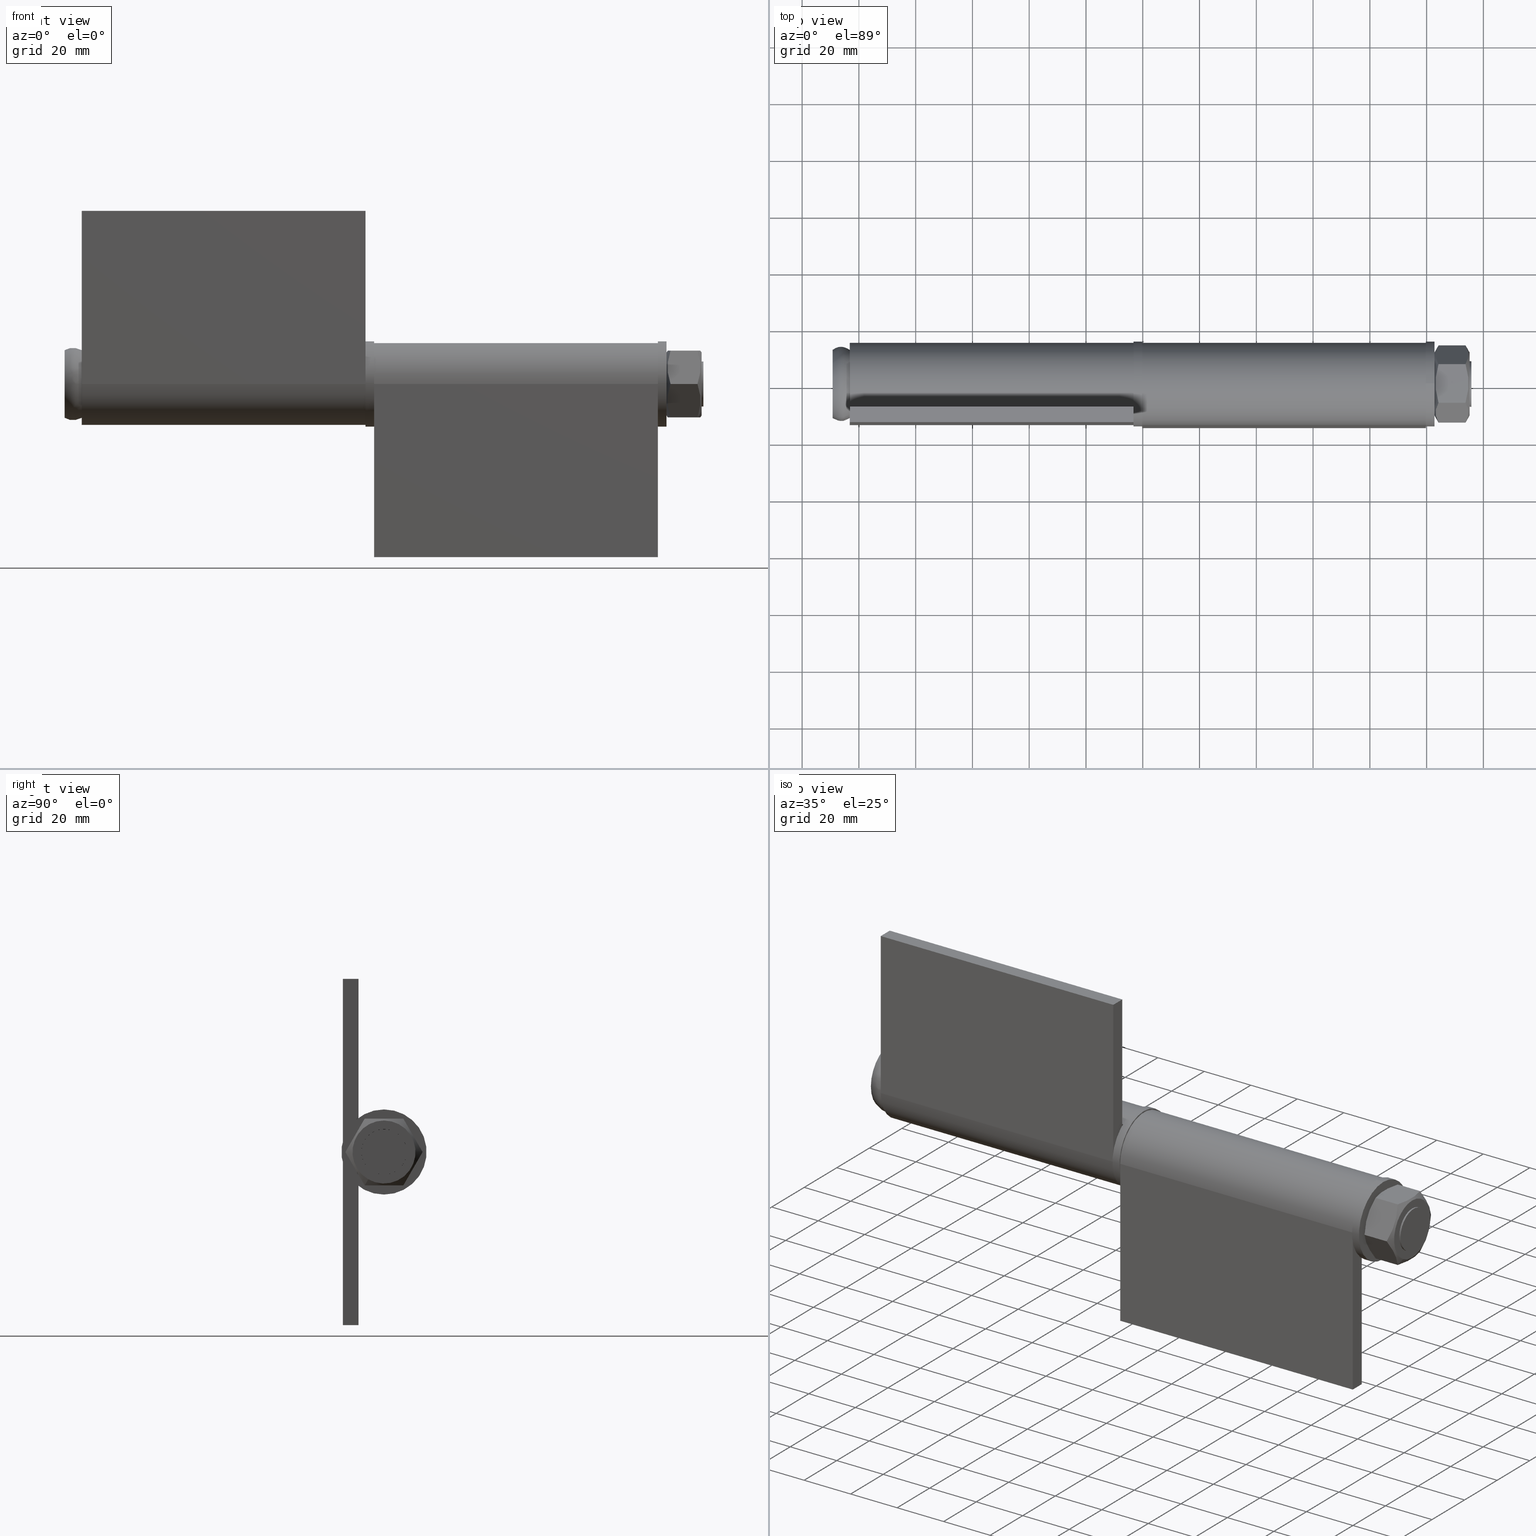
[diagram: canonical four-view strip — front | top / right | iso, engineering-drawing reading convention]
A machine part, canonical four-view strip (front | top / right | iso — engineering-drawing reading convention). The complete STEP part file that produces these views, byte-faithful:
ISO-10303-21;
HEADER;
/* Generated by software containing ST-Developer
 * from STEP Tools, Inc. (www.steptools.com) 
 */

FILE_DESCRIPTION(
/* description */ (''),
/* implementation_level */ '2;1');

FILE_NAME(
/* name */ '\\\\SYNOLOGYNAS\\web\\db2\\HBTN8-B-1\\\X2\B3C4BA74\X0\\\DR
_HBTN8-B-1.stp',
/* time_stamp */ '2023-05-02T17:20:01+09:00',
/* author */ ('user'),
/* organization */ (''),
/* preprocessor_version */ 'ST-DEVELOPER v15.6',
/* originating_system */ 'Autodesk Inventor 2015',
/* authorisation */ '');

FILE_SCHEMA (('AUTOMOTIVE_DESIGN { 1 0 10303 214 3 1 1 }'));
ENDSEC;

DATA;
#10=MECHANICAL_DESIGN_GEOMETRIC_PRESENTATION_REPRESENTATION('',(#97,#98,
#99,#100),#858);
#11=ITEM_DEFINED_TRANSFORMATION($,$,#441,#489);
#12=ITEM_DEFINED_TRANSFORMATION($,$,#450,#490);
#13=ITEM_DEFINED_TRANSFORMATION($,$,#463,#491);
#14=ITEM_DEFINED_TRANSFORMATION($,$,#479,#492);
#15=ITEM_DEFINED_TRANSFORMATION($,$,#450,#493);
#16=ITEM_DEFINED_TRANSFORMATION($,$,#479,#494);
#17=(
REPRESENTATION_RELATIONSHIP($,$,#881,#885)
REPRESENTATION_RELATIONSHIP_WITH_TRANSFORMATION(#11)
SHAPE_REPRESENTATION_RELATIONSHIP()
);
#18=(
REPRESENTATION_RELATIONSHIP($,$,#882,#885)
REPRESENTATION_RELATIONSHIP_WITH_TRANSFORMATION(#12)
SHAPE_REPRESENTATION_RELATIONSHIP()
);
#19=(
REPRESENTATION_RELATIONSHIP($,$,#883,#885)
REPRESENTATION_RELATIONSHIP_WITH_TRANSFORMATION(#13)
SHAPE_REPRESENTATION_RELATIONSHIP()
);
#20=(
REPRESENTATION_RELATIONSHIP($,$,#884,#885)
REPRESENTATION_RELATIONSHIP_WITH_TRANSFORMATION(#14)
SHAPE_REPRESENTATION_RELATIONSHIP()
);
#21=(
REPRESENTATION_RELATIONSHIP($,$,#882,#885)
REPRESENTATION_RELATIONSHIP_WITH_TRANSFORMATION(#15)
SHAPE_REPRESENTATION_RELATIONSHIP()
);
#22=(
REPRESENTATION_RELATIONSHIP($,$,#884,#885)
REPRESENTATION_RELATIONSHIP_WITH_TRANSFORMATION(#16)
SHAPE_REPRESENTATION_RELATIONSHIP()
);
#23=CONTEXT_DEPENDENT_SHAPE_REPRESENTATION(#17,#875);
#24=CONTEXT_DEPENDENT_SHAPE_REPRESENTATION(#18,#876);
#25=CONTEXT_DEPENDENT_SHAPE_REPRESENTATION(#19,#877);
#26=CONTEXT_DEPENDENT_SHAPE_REPRESENTATION(#20,#878);
#27=CONTEXT_DEPENDENT_SHAPE_REPRESENTATION(#21,#879);
#28=CONTEXT_DEPENDENT_SHAPE_REPRESENTATION(#22,#880);
#29=NEXT_ASSEMBLY_USAGE_OCCURRENCE('DR_HBTN8-B-1-P:1',$,$,#891,#887,$);
#30=NEXT_ASSEMBLY_USAGE_OCCURRENCE('DR_HBTN8-B-1:1',$,$,#891,#888,$);
#31=NEXT_ASSEMBLY_USAGE_OCCURRENCE('DR_HBTN8-B-1-N:1',$,$,#891,#889,$);
#32=NEXT_ASSEMBLY_USAGE_OCCURRENCE('DR_HBTN8-B-1-W:1',$,$,#891,#890,$);
#33=NEXT_ASSEMBLY_USAGE_OCCURRENCE('DR_HBTN8-B-1:2',$,$,#891,#888,$);
#34=NEXT_ASSEMBLY_USAGE_OCCURRENCE('DR_HBTN8-B-1-W:2',$,$,#891,#890,$);
#35=CONICAL_SURFACE('',#473,12.35,60.);
#36=CONICAL_SURFACE('',#476,12.35,60.);
#37=(
BOUNDED_CURVE()
B_SPLINE_CURVE(2,(#762,#763,#764),.UNSPECIFIED.,.F.,.F.)
B_SPLINE_CURVE_WITH_KNOTS((3,3),(0.,1.37617771445435),.UNSPECIFIED.)
CURVE()
GEOMETRIC_REPRESENTATION_ITEM()
RATIONAL_B_SPLINE_CURVE((1.,1.15470053837925,1.))
REPRESENTATION_ITEM('')
);
#38=(
BOUNDED_CURVE()
B_SPLINE_CURVE(2,(#768,#769,#770),.UNSPECIFIED.,.F.,.F.)
B_SPLINE_CURVE_WITH_KNOTS((3,3),(0.,1.37617771445435),.UNSPECIFIED.)
CURVE()
GEOMETRIC_REPRESENTATION_ITEM()
RATIONAL_B_SPLINE_CURVE((1.,1.15470053837925,1.))
REPRESENTATION_ITEM('')
);
#39=(
BOUNDED_CURVE()
B_SPLINE_CURVE(2,(#774,#775,#776),.UNSPECIFIED.,.F.,.F.)
B_SPLINE_CURVE_WITH_KNOTS((3,3),(0.,1.37617771445435),.UNSPECIFIED.)
CURVE()
GEOMETRIC_REPRESENTATION_ITEM()
RATIONAL_B_SPLINE_CURVE((1.,1.15470053837925,1.))
REPRESENTATION_ITEM('')
);
#40=(
BOUNDED_CURVE()
B_SPLINE_CURVE(2,(#779,#780,#781),.UNSPECIFIED.,.F.,.F.)
B_SPLINE_CURVE_WITH_KNOTS((3,3),(0.,1.37617771445435),.UNSPECIFIED.)
CURVE()
GEOMETRIC_REPRESENTATION_ITEM()
RATIONAL_B_SPLINE_CURVE((1.,1.15470053837925,1.))
REPRESENTATION_ITEM('')
);
#41=(
BOUNDED_CURVE()
B_SPLINE_CURVE(2,(#784,#785,#786),.UNSPECIFIED.,.F.,.F.)
B_SPLINE_CURVE_WITH_KNOTS((3,3),(0.,1.37617771445435),.UNSPECIFIED.)
CURVE()
GEOMETRIC_REPRESENTATION_ITEM()
RATIONAL_B_SPLINE_CURVE((1.,1.15470053837925,1.))
REPRESENTATION_ITEM('')
);
#42=(
BOUNDED_CURVE()
B_SPLINE_CURVE(2,(#789,#790,#791),.UNSPECIFIED.,.F.,.F.)
B_SPLINE_CURVE_WITH_KNOTS((3,3),(0.,1.37617771445435),.UNSPECIFIED.)
CURVE()
GEOMETRIC_REPRESENTATION_ITEM()
RATIONAL_B_SPLINE_CURVE((1.,1.15470053837925,1.))
REPRESENTATION_ITEM('')
);
#43=(
BOUNDED_CURVE()
B_SPLINE_CURVE(2,(#794,#795,#796),.UNSPECIFIED.,.F.,.F.)
B_SPLINE_CURVE_WITH_KNOTS((3,3),(0.,1.37617771445435),.UNSPECIFIED.)
CURVE()
GEOMETRIC_REPRESENTATION_ITEM()
RATIONAL_B_SPLINE_CURVE((1.,1.15470053837925,1.))
REPRESENTATION_ITEM('')
);
#44=(
BOUNDED_CURVE()
B_SPLINE_CURVE(2,(#799,#800,#801),.UNSPECIFIED.,.F.,.F.)
B_SPLINE_CURVE_WITH_KNOTS((3,3),(0.,1.37617771445435),.UNSPECIFIED.)
CURVE()
GEOMETRIC_REPRESENTATION_ITEM()
RATIONAL_B_SPLINE_CURVE((1.,1.15470053837925,1.))
REPRESENTATION_ITEM('')
);
#45=(
BOUNDED_CURVE()
B_SPLINE_CURVE(2,(#804,#805,#806),.UNSPECIFIED.,.F.,.F.)
B_SPLINE_CURVE_WITH_KNOTS((3,3),(0.,1.37617771445435),.UNSPECIFIED.)
CURVE()
GEOMETRIC_REPRESENTATION_ITEM()
RATIONAL_B_SPLINE_CURVE((1.,1.15470053837925,1.))
REPRESENTATION_ITEM('')
);
#46=(
BOUNDED_CURVE()
B_SPLINE_CURVE(2,(#809,#810,#811),.UNSPECIFIED.,.F.,.F.)
B_SPLINE_CURVE_WITH_KNOTS((3,3),(0.,1.37617771445435),.UNSPECIFIED.)
CURVE()
GEOMETRIC_REPRESENTATION_ITEM()
RATIONAL_B_SPLINE_CURVE((1.,1.15470053837925,1.))
REPRESENTATION_ITEM('')
);
#47=(
BOUNDED_CURVE()
B_SPLINE_CURVE(2,(#813,#814,#815),.UNSPECIFIED.,.F.,.F.)
B_SPLINE_CURVE_WITH_KNOTS((3,3),(0.,1.37617771445435),.UNSPECIFIED.)
CURVE()
GEOMETRIC_REPRESENTATION_ITEM()
RATIONAL_B_SPLINE_CURVE((1.,1.15470053837925,1.))
REPRESENTATION_ITEM('')
);
#48=(
BOUNDED_CURVE()
B_SPLINE_CURVE(2,(#816,#817,#818),.UNSPECIFIED.,.F.,.F.)
B_SPLINE_CURVE_WITH_KNOTS((3,3),(0.,1.37617771445435),.UNSPECIFIED.)
CURVE()
GEOMETRIC_REPRESENTATION_ITEM()
RATIONAL_B_SPLINE_CURVE((1.,1.15470053837925,1.))
REPRESENTATION_ITEM('')
);
#49=LINE('',#718,#69);
#50=LINE('',#720,#70);
#51=LINE('',#722,#71);
#52=LINE('',#723,#72);
#53=LINE('',#726,#73);
#54=LINE('',#728,#74);
#55=LINE('',#729,#75);
#56=LINE('',#732,#76);
#57=LINE('',#734,#77);
#58=LINE('',#735,#78);
#59=LINE('',#740,#79);
#60=LINE('',#744,#80);
#61=LINE('',#746,#81);
#62=LINE('',#747,#82);
#63=LINE('',#766,#83);
#64=LINE('',#771,#84);
#65=LINE('',#778,#85);
#66=LINE('',#788,#86);
#67=LINE('',#798,#87);
#68=LINE('',#808,#88);
#69=VECTOR('',#517,61.);
#70=VECTOR('',#518,100.);
#71=VECTOR('',#519,61.);
#72=VECTOR('',#520,100.);
#73=VECTOR('',#523,5.5);
#74=VECTOR('',#524,100.);
#75=VECTOR('',#525,5.5);
#76=VECTOR('',#528,61.);
#77=VECTOR('',#529,100.);
#78=VECTOR('',#530,61.);
#79=VECTOR('',#535,100.);
#80=VECTOR('',#540,5.50000000000001);
#81=VECTOR('',#541,100.);
#82=VECTOR('',#542,5.50000000000001);
#83=VECTOR('',#563,9.51324865405187);
#84=VECTOR('',#564,9.51324865405187);
#85=VECTOR('',#567,9.51324865405187);
#86=VECTOR('',#570,9.51324865405187);
#87=VECTOR('',#573,9.51324865405187);
#88=VECTOR('',#576,9.51324865405187);
#89=SHAPE_REPRESENTATION_RELATIONSHIP('SRR','None',#881,#93);
#90=SHAPE_REPRESENTATION_RELATIONSHIP('SRR','None',#882,#94);
#91=SHAPE_REPRESENTATION_RELATIONSHIP('SRR','None',#883,#95);
#92=SHAPE_REPRESENTATION_RELATIONSHIP('SRR','None',#884,#96);
#93=ADVANCED_BREP_SHAPE_REPRESENTATION($,(#101),#853);
#94=ADVANCED_BREP_SHAPE_REPRESENTATION($,(#102),#854);
#95=ADVANCED_BREP_SHAPE_REPRESENTATION($,(#103),#855);
#96=ADVANCED_BREP_SHAPE_REPRESENTATION($,(#104),#856);
#97=STYLED_ITEM('',(#910),#101);
#98=STYLED_ITEM('',(#911),#102);
#99=STYLED_ITEM('',(#912),#103);
#100=STYLED_ITEM('',(#913),#104);
#101=MANIFOLD_SOLID_BREP('\X2\C194B9ACB4DC\X0\1',#437);
#102=MANIFOLD_SOLID_BREP('\X2\C194B9ACB4DC\X0\1',#438);
#103=MANIFOLD_SOLID_BREP('\X2\C194B9ACB4DC\X0\1',#439);
#104=MANIFOLD_SOLID_BREP('\X2\C194B9ACB4DC\X0\1',#440);
#105=CYLINDRICAL_SURFACE('',#447,8.00000000000005);
#106=CYLINDRICAL_SURFACE('',#454,8.99999999999999);
#107=CYLINDRICAL_SURFACE('',#458,14.5);
#108=CYLINDRICAL_SURFACE('',#464,8.);
#109=CYLINDRICAL_SURFACE('',#480,8.5);
#110=CYLINDRICAL_SURFACE('',#483,15.);
#111=B_SPLINE_CURVE_WITH_KNOTS('',3,(#703,#704,#705,#706,#707,#708),
 .UNSPECIFIED.,.F.,.F.,(4,2,4),(0.,0.351628704774406,1.),.UNSPECIFIED.);
#112=B_SPLINE_SURFACE_WITH_KNOTS('',3,3,((#629,#630,#631,#632),(#633,#634,
#635,#636),(#637,#638,#639,#640),(#641,#642,#643,#644),(#645,#646,#647,
#648),(#649,#650,#651,#652),(#653,#654,#655,#656),(#657,#658,#659,#660),
(#661,#662,#663,#664),(#665,#666,#667,#668),(#669,#670,#671,#672),(#673,
#674,#675,#676),(#677,#678,#679,#680),(#681,#682,#683,#684),(#685,#686,
#687,#688),(#689,#690,#691,#692),(#693,#694,#695,#696),(#697,#698,#699,
#700)),.UNSPECIFIED.,.T.,.F.,.F.,(4,1,1,1,1,1,1,1,1,1,1,1,1,1,1,4),(4,4),
(-3.27901317847429E-31,0.0714285714285714,0.142857142857143,0.214285714285714,
0.285714285714286,0.357142857142857,0.428571428571429,0.523809523809524,
0.547619047619048,0.571428571428571,0.666666666666667,0.714285714285714,
0.785714285714286,0.857142857142857,0.928571428571429,1.),(0.,1.),
 .UNSPECIFIED.);
#113=FACE_BOUND('',#153,.T.);
#114=FACE_BOUND('',#157,.T.);
#115=FACE_BOUND('',#168,.T.);
#116=FACE_BOUND('',#176,.T.);
#117=FACE_BOUND('',#178,.T.);
#118=FACE_BOUND('',#180,.T.);
#119=FACE_BOUND('',#182,.T.);
#120=FACE_BOUND('',#184,.T.);
#121=FACE_BOUND('',#186,.T.);
#122=FACE_BOUND('',#188,.T.);
#123=FACE_BOUND('',#190,.T.);
#124=FACE_OUTER_BOUND('',#152,.T.);
#125=FACE_OUTER_BOUND('',#154,.T.);
#126=FACE_OUTER_BOUND('',#155,.T.);
#127=FACE_OUTER_BOUND('',#156,.T.);
#128=FACE_OUTER_BOUND('',#158,.T.);
#129=FACE_OUTER_BOUND('',#159,.T.);
#130=FACE_OUTER_BOUND('',#160,.T.);
#131=FACE_OUTER_BOUND('',#161,.T.);
#132=FACE_OUTER_BOUND('',#162,.T.);
#133=FACE_OUTER_BOUND('',#163,.T.);
#134=FACE_OUTER_BOUND('',#164,.T.);
#135=FACE_OUTER_BOUND('',#165,.T.);
#136=FACE_OUTER_BOUND('',#166,.T.);
#137=FACE_OUTER_BOUND('',#167,.T.);
#138=FACE_OUTER_BOUND('',#169,.T.);
#139=FACE_OUTER_BOUND('',#170,.T.);
#140=FACE_OUTER_BOUND('',#171,.T.);
#141=FACE_OUTER_BOUND('',#172,.T.);
#142=FACE_OUTER_BOUND('',#173,.T.);
#143=FACE_OUTER_BOUND('',#174,.T.);
#144=FACE_OUTER_BOUND('',#175,.T.);
#145=FACE_OUTER_BOUND('',#177,.T.);
#146=FACE_OUTER_BOUND('',#179,.T.);
#147=FACE_OUTER_BOUND('',#181,.T.);
#148=FACE_OUTER_BOUND('',#183,.T.);
#149=FACE_OUTER_BOUND('',#185,.T.);
#150=FACE_OUTER_BOUND('',#187,.T.);
#151=FACE_OUTER_BOUND('',#189,.T.);
#152=EDGE_LOOP('',(#292));
#153=EDGE_LOOP('',(#293));
#154=EDGE_LOOP('',(#294,#295,#296,#297));
#155=EDGE_LOOP('',(#298));
#156=EDGE_LOOP('',(#299));
#157=EDGE_LOOP('',(#300));
#158=EDGE_LOOP('',(#301));
#159=EDGE_LOOP('',(#302,#303,#304,#305));
#160=EDGE_LOOP('',(#306,#307,#308,#309));
#161=EDGE_LOOP('',(#310,#311,#312,#313));
#162=EDGE_LOOP('',(#314,#315,#316,#317));
#163=EDGE_LOOP('',(#318,#319,#320,#321));
#164=EDGE_LOOP('',(#322,#323,#324,#325));
#165=EDGE_LOOP('',(#326,#327,#328,#329,#330,#331));
#166=EDGE_LOOP('',(#332,#333,#334,#335,#336,#337));
#167=EDGE_LOOP('',(#338));
#168=EDGE_LOOP('',(#339));
#169=EDGE_LOOP('',(#340,#341,#342,#343));
#170=EDGE_LOOP('',(#344,#345,#346,#347));
#171=EDGE_LOOP('',(#348,#349,#350,#351));
#172=EDGE_LOOP('',(#352,#353,#354,#355));
#173=EDGE_LOOP('',(#356,#357,#358,#359));
#174=EDGE_LOOP('',(#360,#361,#362,#363));
#175=EDGE_LOOP('',(#364,#365,#366,#367,#368,#369));
#176=EDGE_LOOP('',(#370));
#177=EDGE_LOOP('',(#371));
#178=EDGE_LOOP('',(#372));
#179=EDGE_LOOP('',(#373,#374,#375,#376,#377,#378));
#180=EDGE_LOOP('',(#379));
#181=EDGE_LOOP('',(#380));
#182=EDGE_LOOP('',(#381));
#183=EDGE_LOOP('',(#382));
#184=EDGE_LOOP('',(#383));
#185=EDGE_LOOP('',(#384));
#186=EDGE_LOOP('',(#385));
#187=EDGE_LOOP('',(#386));
#188=EDGE_LOOP('',(#387));
#189=EDGE_LOOP('',(#388));
#190=EDGE_LOOP('',(#389));
#191=CIRCLE('',#443,12.);
#192=CIRCLE('',#444,8.00000000000005);
#193=CIRCLE('',#445,12.);
#194=CIRCLE('',#448,8.);
#195=CIRCLE('',#455,8.99999999999999);
#196=CIRCLE('',#456,8.99999999999999);
#197=CIRCLE('',#459,14.5);
#198=CIRCLE('',#460,14.5);
#199=CIRCLE('',#465,8.);
#200=CIRCLE('',#466,8.);
#201=CIRCLE('',#474,11.1);
#202=CIRCLE('',#477,11.1);
#203=CIRCLE('',#481,8.5);
#204=CIRCLE('',#482,8.5);
#205=CIRCLE('',#484,15.);
#206=CIRCLE('',#485,15.);
#207=VERTEX_POINT('',#625);
#208=VERTEX_POINT('',#627);
#209=VERTEX_POINT('',#701);
#210=VERTEX_POINT('',#711);
#211=VERTEX_POINT('',#716);
#212=VERTEX_POINT('',#717);
#213=VERTEX_POINT('',#719);
#214=VERTEX_POINT('',#721);
#215=VERTEX_POINT('',#725);
#216=VERTEX_POINT('',#727);
#217=VERTEX_POINT('',#731);
#218=VERTEX_POINT('',#733);
#219=VERTEX_POINT('',#737);
#220=VERTEX_POINT('',#739);
#221=VERTEX_POINT('',#743);
#222=VERTEX_POINT('',#745);
#223=VERTEX_POINT('',#755);
#224=VERTEX_POINT('',#757);
#225=VERTEX_POINT('',#760);
#226=VERTEX_POINT('',#761);
#227=VERTEX_POINT('',#765);
#228=VERTEX_POINT('',#767);
#229=VERTEX_POINT('',#773);
#230=VERTEX_POINT('',#777);
#231=VERTEX_POINT('',#783);
#232=VERTEX_POINT('',#787);
#233=VERTEX_POINT('',#793);
#234=VERTEX_POINT('',#797);
#235=VERTEX_POINT('',#803);
#236=VERTEX_POINT('',#807);
#237=VERTEX_POINT('',#820);
#238=VERTEX_POINT('',#824);
#239=VERTEX_POINT('',#829);
#240=VERTEX_POINT('',#831);
#241=VERTEX_POINT('',#834);
#242=VERTEX_POINT('',#836);
#243=EDGE_CURVE('',#207,#207,#191,.T.);
#244=EDGE_CURVE('',#208,#208,#192,.T.);
#245=EDGE_CURVE('',#209,#209,#193,.T.);
#246=EDGE_CURVE('',#209,#207,#111,.T.);
#247=EDGE_CURVE('',#210,#210,#194,.T.);
#248=EDGE_CURVE('',#211,#212,#49,.T.);
#249=EDGE_CURVE('',#213,#212,#50,.T.);
#250=EDGE_CURVE('',#213,#214,#51,.T.);
#251=EDGE_CURVE('',#214,#211,#52,.T.);
#252=EDGE_CURVE('',#212,#215,#53,.T.);
#253=EDGE_CURVE('',#216,#215,#54,.T.);
#254=EDGE_CURVE('',#216,#213,#55,.T.);
#255=EDGE_CURVE('',#215,#217,#56,.T.);
#256=EDGE_CURVE('',#218,#217,#57,.T.);
#257=EDGE_CURVE('',#218,#216,#58,.T.);
#258=EDGE_CURVE('',#217,#219,#195,.T.);
#259=EDGE_CURVE('',#220,#219,#59,.T.);
#260=EDGE_CURVE('',#220,#218,#196,.T.);
#261=EDGE_CURVE('',#219,#221,#60,.T.);
#262=EDGE_CURVE('',#222,#221,#61,.T.);
#263=EDGE_CURVE('',#222,#220,#62,.T.);
#264=EDGE_CURVE('',#221,#211,#197,.T.);
#265=EDGE_CURVE('',#214,#222,#198,.T.);
#266=EDGE_CURVE('',#223,#223,#199,.T.);
#267=EDGE_CURVE('',#224,#224,#200,.T.);
#268=EDGE_CURVE('',#225,#226,#37,.T.);
#269=EDGE_CURVE('',#226,#227,#63,.T.);
#270=EDGE_CURVE('',#227,#228,#38,.T.);
#271=EDGE_CURVE('',#225,#228,#64,.T.);
#272=EDGE_CURVE('',#226,#229,#39,.T.);
#273=EDGE_CURVE('',#230,#229,#65,.T.);
#274=EDGE_CURVE('',#230,#227,#40,.T.);
#275=EDGE_CURVE('',#229,#231,#41,.T.);
#276=EDGE_CURVE('',#231,#232,#66,.T.);
#277=EDGE_CURVE('',#232,#230,#42,.T.);
#278=EDGE_CURVE('',#231,#233,#43,.T.);
#279=EDGE_CURVE('',#233,#234,#67,.T.);
#280=EDGE_CURVE('',#234,#232,#44,.T.);
#281=EDGE_CURVE('',#233,#235,#45,.T.);
#282=EDGE_CURVE('',#235,#236,#68,.T.);
#283=EDGE_CURVE('',#236,#234,#46,.T.);
#284=EDGE_CURVE('',#235,#225,#47,.T.);
#285=EDGE_CURVE('',#228,#236,#48,.T.);
#286=EDGE_CURVE('',#237,#237,#201,.T.);
#287=EDGE_CURVE('',#238,#238,#202,.T.);
#288=EDGE_CURVE('',#239,#239,#203,.T.);
#289=EDGE_CURVE('',#240,#240,#204,.T.);
#290=EDGE_CURVE('',#241,#241,#205,.T.);
#291=EDGE_CURVE('',#242,#242,#206,.T.);
#292=ORIENTED_EDGE('',*,*,#243,.T.);
#293=ORIENTED_EDGE('',*,*,#244,.F.);
#294=ORIENTED_EDGE('',*,*,#245,.T.);
#295=ORIENTED_EDGE('',*,*,#246,.T.);
#296=ORIENTED_EDGE('',*,*,#243,.F.);
#297=ORIENTED_EDGE('',*,*,#246,.F.);
#298=ORIENTED_EDGE('',*,*,#245,.F.);
#299=ORIENTED_EDGE('',*,*,#244,.T.);
#300=ORIENTED_EDGE('',*,*,#247,.F.);
#301=ORIENTED_EDGE('',*,*,#247,.T.);
#302=ORIENTED_EDGE('',*,*,#248,.T.);
#303=ORIENTED_EDGE('',*,*,#249,.F.);
#304=ORIENTED_EDGE('',*,*,#250,.T.);
#305=ORIENTED_EDGE('',*,*,#251,.T.);
#306=ORIENTED_EDGE('',*,*,#252,.T.);
#307=ORIENTED_EDGE('',*,*,#253,.F.);
#308=ORIENTED_EDGE('',*,*,#254,.T.);
#309=ORIENTED_EDGE('',*,*,#249,.T.);
#310=ORIENTED_EDGE('',*,*,#255,.T.);
#311=ORIENTED_EDGE('',*,*,#256,.F.);
#312=ORIENTED_EDGE('',*,*,#257,.T.);
#313=ORIENTED_EDGE('',*,*,#253,.T.);
#314=ORIENTED_EDGE('',*,*,#258,.T.);
#315=ORIENTED_EDGE('',*,*,#259,.F.);
#316=ORIENTED_EDGE('',*,*,#260,.T.);
#317=ORIENTED_EDGE('',*,*,#256,.T.);
#318=ORIENTED_EDGE('',*,*,#261,.T.);
#319=ORIENTED_EDGE('',*,*,#262,.F.);
#320=ORIENTED_EDGE('',*,*,#263,.T.);
#321=ORIENTED_EDGE('',*,*,#259,.T.);
#322=ORIENTED_EDGE('',*,*,#264,.T.);
#323=ORIENTED_EDGE('',*,*,#251,.F.);
#324=ORIENTED_EDGE('',*,*,#265,.T.);
#325=ORIENTED_EDGE('',*,*,#262,.T.);
#326=ORIENTED_EDGE('',*,*,#265,.F.);
#327=ORIENTED_EDGE('',*,*,#250,.F.);
#328=ORIENTED_EDGE('',*,*,#254,.F.);
#329=ORIENTED_EDGE('',*,*,#257,.F.);
#330=ORIENTED_EDGE('',*,*,#260,.F.);
#331=ORIENTED_EDGE('',*,*,#263,.F.);
#332=ORIENTED_EDGE('',*,*,#248,.F.);
#333=ORIENTED_EDGE('',*,*,#264,.F.);
#334=ORIENTED_EDGE('',*,*,#261,.F.);
#335=ORIENTED_EDGE('',*,*,#258,.F.);
#336=ORIENTED_EDGE('',*,*,#255,.F.);
#337=ORIENTED_EDGE('',*,*,#252,.F.);
#338=ORIENTED_EDGE('',*,*,#266,.F.);
#339=ORIENTED_EDGE('',*,*,#267,.F.);
#340=ORIENTED_EDGE('',*,*,#268,.T.);
#341=ORIENTED_EDGE('',*,*,#269,.T.);
#342=ORIENTED_EDGE('',*,*,#270,.T.);
#343=ORIENTED_EDGE('',*,*,#271,.F.);
#344=ORIENTED_EDGE('',*,*,#272,.T.);
#345=ORIENTED_EDGE('',*,*,#273,.F.);
#346=ORIENTED_EDGE('',*,*,#274,.T.);
#347=ORIENTED_EDGE('',*,*,#269,.F.);
#348=ORIENTED_EDGE('',*,*,#275,.T.);
#349=ORIENTED_EDGE('',*,*,#276,.T.);
#350=ORIENTED_EDGE('',*,*,#277,.T.);
#351=ORIENTED_EDGE('',*,*,#273,.T.);
#352=ORIENTED_EDGE('',*,*,#278,.T.);
#353=ORIENTED_EDGE('',*,*,#279,.T.);
#354=ORIENTED_EDGE('',*,*,#280,.T.);
#355=ORIENTED_EDGE('',*,*,#276,.F.);
#356=ORIENTED_EDGE('',*,*,#281,.T.);
#357=ORIENTED_EDGE('',*,*,#282,.T.);
#358=ORIENTED_EDGE('',*,*,#283,.T.);
#359=ORIENTED_EDGE('',*,*,#279,.F.);
#360=ORIENTED_EDGE('',*,*,#284,.T.);
#361=ORIENTED_EDGE('',*,*,#271,.T.);
#362=ORIENTED_EDGE('',*,*,#285,.T.);
#363=ORIENTED_EDGE('',*,*,#282,.F.);
#364=ORIENTED_EDGE('',*,*,#280,.F.);
#365=ORIENTED_EDGE('',*,*,#283,.F.);
#366=ORIENTED_EDGE('',*,*,#285,.F.);
#367=ORIENTED_EDGE('',*,*,#270,.F.);
#368=ORIENTED_EDGE('',*,*,#274,.F.);
#369=ORIENTED_EDGE('',*,*,#277,.F.);
#370=ORIENTED_EDGE('',*,*,#286,.T.);
#371=ORIENTED_EDGE('',*,*,#286,.F.);
#372=ORIENTED_EDGE('',*,*,#267,.T.);
#373=ORIENTED_EDGE('',*,*,#275,.F.);
#374=ORIENTED_EDGE('',*,*,#272,.F.);
#375=ORIENTED_EDGE('',*,*,#268,.F.);
#376=ORIENTED_EDGE('',*,*,#284,.F.);
#377=ORIENTED_EDGE('',*,*,#281,.F.);
#378=ORIENTED_EDGE('',*,*,#278,.F.);
#379=ORIENTED_EDGE('',*,*,#287,.T.);
#380=ORIENTED_EDGE('',*,*,#287,.F.);
#381=ORIENTED_EDGE('',*,*,#266,.T.);
#382=ORIENTED_EDGE('',*,*,#288,.F.);
#383=ORIENTED_EDGE('',*,*,#289,.F.);
#384=ORIENTED_EDGE('',*,*,#290,.T.);
#385=ORIENTED_EDGE('',*,*,#291,.F.);
#386=ORIENTED_EDGE('',*,*,#290,.F.);
#387=ORIENTED_EDGE('',*,*,#288,.T.);
#388=ORIENTED_EDGE('',*,*,#291,.T.);
#389=ORIENTED_EDGE('',*,*,#289,.T.);
#390=PLANE('',#442);
#391=PLANE('',#446);
#392=PLANE('',#449);
#393=PLANE('',#451);
#394=PLANE('',#452);
#395=PLANE('',#453);
#396=PLANE('',#457);
#397=PLANE('',#461);
#398=PLANE('',#462);
#399=PLANE('',#467);
#400=PLANE('',#468);
#401=PLANE('',#469);
#402=PLANE('',#470);
#403=PLANE('',#471);
#404=PLANE('',#472);
#405=PLANE('',#475);
#406=PLANE('',#478);
#407=PLANE('',#486);
#408=PLANE('',#487);
#409=ADVANCED_FACE('',(#124,#113),#390,.T.);
#410=ADVANCED_FACE('',(#125),#112,.T.);
#411=ADVANCED_FACE('',(#126),#391,.T.);
#412=ADVANCED_FACE('',(#127,#114),#105,.T.);
#413=ADVANCED_FACE('',(#128),#392,.T.);
#414=ADVANCED_FACE('',(#129),#393,.T.);
#415=ADVANCED_FACE('',(#130),#394,.T.);
#416=ADVANCED_FACE('',(#131),#395,.T.);
#417=ADVANCED_FACE('',(#132),#106,.F.);
#418=ADVANCED_FACE('',(#133),#396,.T.);
#419=ADVANCED_FACE('',(#134),#107,.T.);
#420=ADVANCED_FACE('',(#135),#397,.F.);
#421=ADVANCED_FACE('',(#136),#398,.T.);
#422=ADVANCED_FACE('',(#137,#115),#108,.F.);
#423=ADVANCED_FACE('',(#138),#399,.T.);
#424=ADVANCED_FACE('',(#139),#400,.T.);
#425=ADVANCED_FACE('',(#140),#401,.T.);
#426=ADVANCED_FACE('',(#141),#402,.T.);
#427=ADVANCED_FACE('',(#142),#403,.T.);
#428=ADVANCED_FACE('',(#143),#404,.T.);
#429=ADVANCED_FACE('',(#144,#116),#35,.T.);
#430=ADVANCED_FACE('',(#145,#117),#405,.F.);
#431=ADVANCED_FACE('',(#146,#118),#36,.T.);
#432=ADVANCED_FACE('',(#147,#119),#406,.T.);
#433=ADVANCED_FACE('',(#148,#120),#109,.F.);
#434=ADVANCED_FACE('',(#149,#121),#110,.T.);
#435=ADVANCED_FACE('',(#150,#122),#407,.F.);
#436=ADVANCED_FACE('',(#151,#123),#408,.T.);
#437=CLOSED_SHELL('',(#409,#410,#411,#412,#413));
#438=CLOSED_SHELL('',(#414,#415,#416,#417,#418,#419,#420,#421));
#439=CLOSED_SHELL('',(#422,#423,#424,#425,#426,#427,#428,#429,#430,#431,
#432));
#440=CLOSED_SHELL('',(#433,#434,#435,#436));
#441=AXIS2_PLACEMENT_3D('placement',#623,#495,#496);
#442=AXIS2_PLACEMENT_3D('',#624,#497,#498);
#443=AXIS2_PLACEMENT_3D('',#626,#499,#500);
#444=AXIS2_PLACEMENT_3D('',#628,#501,#502);
#445=AXIS2_PLACEMENT_3D('',#702,#503,#504);
#446=AXIS2_PLACEMENT_3D('',#709,#505,#506);
#447=AXIS2_PLACEMENT_3D('',#710,#507,#508);
#448=AXIS2_PLACEMENT_3D('',#712,#509,#510);
#449=AXIS2_PLACEMENT_3D('',#713,#511,#512);
#450=AXIS2_PLACEMENT_3D('placement',#714,#513,#514);
#451=AXIS2_PLACEMENT_3D('',#715,#515,#516);
#452=AXIS2_PLACEMENT_3D('',#724,#521,#522);
#453=AXIS2_PLACEMENT_3D('',#730,#526,#527);
#454=AXIS2_PLACEMENT_3D('',#736,#531,#532);
#455=AXIS2_PLACEMENT_3D('',#738,#533,#534);
#456=AXIS2_PLACEMENT_3D('',#741,#536,#537);
#457=AXIS2_PLACEMENT_3D('',#742,#538,#539);
#458=AXIS2_PLACEMENT_3D('',#748,#543,#544);
#459=AXIS2_PLACEMENT_3D('',#749,#545,#546);
#460=AXIS2_PLACEMENT_3D('',#750,#547,#548);
#461=AXIS2_PLACEMENT_3D('',#751,#549,#550);
#462=AXIS2_PLACEMENT_3D('',#752,#551,#552);
#463=AXIS2_PLACEMENT_3D('placement',#753,#553,#554);
#464=AXIS2_PLACEMENT_3D('',#754,#555,#556);
#465=AXIS2_PLACEMENT_3D('',#756,#557,#558);
#466=AXIS2_PLACEMENT_3D('',#758,#559,#560);
#467=AXIS2_PLACEMENT_3D('',#759,#561,#562);
#468=AXIS2_PLACEMENT_3D('',#772,#565,#566);
#469=AXIS2_PLACEMENT_3D('',#782,#568,#569);
#470=AXIS2_PLACEMENT_3D('',#792,#571,#572);
#471=AXIS2_PLACEMENT_3D('',#802,#574,#575);
#472=AXIS2_PLACEMENT_3D('',#812,#577,#578);
#473=AXIS2_PLACEMENT_3D('',#819,#579,#580);
#474=AXIS2_PLACEMENT_3D('',#821,#581,#582);
#475=AXIS2_PLACEMENT_3D('',#822,#583,#584);
#476=AXIS2_PLACEMENT_3D('',#823,#585,#586);
#477=AXIS2_PLACEMENT_3D('',#825,#587,#588);
#478=AXIS2_PLACEMENT_3D('',#826,#589,#590);
#479=AXIS2_PLACEMENT_3D('placement',#827,#591,#592);
#480=AXIS2_PLACEMENT_3D('',#828,#593,#594);
#481=AXIS2_PLACEMENT_3D('',#830,#595,#596);
#482=AXIS2_PLACEMENT_3D('',#832,#597,#598);
#483=AXIS2_PLACEMENT_3D('',#833,#599,#600);
#484=AXIS2_PLACEMENT_3D('',#835,#601,#602);
#485=AXIS2_PLACEMENT_3D('',#837,#603,#604);
#486=AXIS2_PLACEMENT_3D('',#838,#605,#606);
#487=AXIS2_PLACEMENT_3D('',#839,#607,#608);
#488=AXIS2_PLACEMENT_3D('placement',#840,#609,#610);
#489=AXIS2_PLACEMENT_3D('',#841,#611,#612);
#490=AXIS2_PLACEMENT_3D('',#842,#613,#614);
#491=AXIS2_PLACEMENT_3D('',#843,#615,#616);
#492=AXIS2_PLACEMENT_3D('',#844,#617,#618);
#493=AXIS2_PLACEMENT_3D('',#845,#619,#620);
#494=AXIS2_PLACEMENT_3D('',#846,#621,#622);
#495=DIRECTION('axis',(0.,0.,1.));
#496=DIRECTION('refdir',(1.,0.,0.));
#497=DIRECTION('center_axis',(1.,0.,0.));
#498=DIRECTION('ref_axis',(0.,0.,-1.));
#499=DIRECTION('center_axis',(1.,0.,0.));
#500=DIRECTION('ref_axis',(0.,-1.,0.));
#501=DIRECTION('center_axis',(1.,0.,0.));
#502=DIRECTION('ref_axis',(0.,1.,0.));
#503=DIRECTION('center_axis',(1.,0.,0.));
#504=DIRECTION('ref_axis',(0.,0.,-1.));
#505=DIRECTION('center_axis',(-1.,0.,0.));
#506=DIRECTION('ref_axis',(0.,0.,1.));
#507=DIRECTION('center_axis',(1.,0.,0.));
#508=DIRECTION('ref_axis',(0.,1.,0.));
#509=DIRECTION('center_axis',(1.,0.,0.));
#510=DIRECTION('ref_axis',(0.,1.,0.));
#511=DIRECTION('center_axis',(1.,0.,0.));
#512=DIRECTION('ref_axis',(0.,0.,-1.));
#513=DIRECTION('axis',(0.,0.,1.));
#514=DIRECTION('refdir',(1.,0.,0.));
#515=DIRECTION('center_axis',(1.09202264717229E-16,-1.,0.));
#516=DIRECTION('ref_axis',(0.,0.,-1.));
#517=DIRECTION('',(-1.,-1.09202264717229E-16,0.));
#518=DIRECTION('',(0.,0.,1.));
#519=DIRECTION('',(1.,1.09202264717229E-16,0.));
#520=DIRECTION('',(0.,0.,1.));
#521=DIRECTION('center_axis',(-1.,0.,0.));
#522=DIRECTION('ref_axis',(0.,0.,1.));
#523=DIRECTION('',(0.,1.,0.));
#524=DIRECTION('',(0.,0.,1.));
#525=DIRECTION('',(0.,-1.,0.));
#526=DIRECTION('center_axis',(-2.18404529434457E-16,1.,0.));
#527=DIRECTION('ref_axis',(0.,0.,1.));
#528=DIRECTION('',(1.,2.18404529434457E-16,0.));
#529=DIRECTION('',(0.,0.,1.));
#530=DIRECTION('',(-1.,-2.18404529434457E-16,0.));
#531=DIRECTION('center_axis',(0.,0.,1.));
#532=DIRECTION('ref_axis',(1.,0.,0.));
#533=DIRECTION('center_axis',(0.,0.,1.));
#534=DIRECTION('ref_axis',(1.,0.,0.));
#535=DIRECTION('',(0.,0.,1.));
#536=DIRECTION('center_axis',(0.,0.,-1.));
#537=DIRECTION('ref_axis',(1.,0.,0.));
#538=DIRECTION('center_axis',(0.558300924982387,-0.82963852198642,0.));
#539=DIRECTION('ref_axis',(0.,0.,-1.));
#540=DIRECTION('',(-0.82963852198642,-0.558300924982387,0.));
#541=DIRECTION('',(0.,0.,1.));
#542=DIRECTION('',(0.82963852198642,0.558300924982387,0.));
#543=DIRECTION('center_axis',(0.,0.,1.));
#544=DIRECTION('ref_axis',(1.22464679914735E-16,-1.,0.));
#545=DIRECTION('center_axis',(0.,0.,-1.));
#546=DIRECTION('ref_axis',(1.22464679914735E-16,-1.,0.));
#547=DIRECTION('center_axis',(0.,0.,1.));
#548=DIRECTION('ref_axis',(1.22464679914735E-16,-1.,0.));
#549=DIRECTION('center_axis',(0.,0.,1.));
#550=DIRECTION('ref_axis',(1.,0.,0.));
#551=DIRECTION('center_axis',(0.,0.,1.));
#552=DIRECTION('ref_axis',(1.,0.,0.));
#553=DIRECTION('axis',(0.,0.,1.));
#554=DIRECTION('refdir',(1.,0.,0.));
#555=DIRECTION('center_axis',(0.,0.,1.));
#556=DIRECTION('ref_axis',(1.,0.,0.));
#557=DIRECTION('center_axis',(0.,0.,-1.));
#558=DIRECTION('ref_axis',(1.,0.,0.));
#559=DIRECTION('center_axis',(0.,0.,1.));
#560=DIRECTION('ref_axis',(1.,0.,0.));
#561=DIRECTION('center_axis',(0.499999999999999,-0.866025403784439,0.));
#562=DIRECTION('ref_axis',(0.866025403784439,0.499999999999999,0.));
#563=DIRECTION('',(0.,0.,-1.));
#564=DIRECTION('',(0.,0.,-1.));
#565=DIRECTION('center_axis',(-0.5,-0.866025403784438,0.));
#566=DIRECTION('ref_axis',(0.866025403784438,-0.5,0.));
#567=DIRECTION('',(0.,0.,1.));
#568=DIRECTION('center_axis',(-1.,4.89804275569922E-16,0.));
#569=DIRECTION('ref_axis',(-5.32907051820075E-16,-1.,0.));
#570=DIRECTION('',(0.,0.,-1.));
#571=DIRECTION('center_axis',(-0.5,0.866025403784439,0.));
#572=DIRECTION('ref_axis',(-0.866025403784439,-0.5,0.));
#573=DIRECTION('',(0.,0.,-1.));
#574=DIRECTION('center_axis',(0.500000000000001,0.866025403784438,0.));
#575=DIRECTION('ref_axis',(-0.866025403784438,0.5,0.));
#576=DIRECTION('',(0.,0.,-1.));
#577=DIRECTION('center_axis',(1.,-8.16340459283203E-16,0.));
#578=DIRECTION('ref_axis',(8.88178419700125E-16,1.,0.));
#579=DIRECTION('center_axis',(0.,0.,1.));
#580=DIRECTION('ref_axis',(-1.,0.,0.));
#581=DIRECTION('center_axis',(0.,0.,1.));
#582=DIRECTION('ref_axis',(-1.,0.,0.));
#583=DIRECTION('center_axis',(0.,0.,1.));
#584=DIRECTION('ref_axis',(1.,0.,0.));
#585=DIRECTION('center_axis',(0.,0.,-1.));
#586=DIRECTION('ref_axis',(-1.,0.,0.));
#587=DIRECTION('center_axis',(0.,0.,-1.));
#588=DIRECTION('ref_axis',(-1.,0.,0.));
#589=DIRECTION('center_axis',(0.,0.,1.));
#590=DIRECTION('ref_axis',(1.,0.,0.));
#591=DIRECTION('axis',(0.,0.,1.));
#592=DIRECTION('refdir',(1.,0.,0.));
#593=DIRECTION('center_axis',(0.,0.,1.));
#594=DIRECTION('ref_axis',(-1.,0.,0.));
#595=DIRECTION('center_axis',(0.,0.,-1.));
#596=DIRECTION('ref_axis',(-1.,0.,0.));
#597=DIRECTION('center_axis',(0.,0.,1.));
#598=DIRECTION('ref_axis',(-1.,0.,0.));
#599=DIRECTION('center_axis',(0.,0.,1.));
#600=DIRECTION('ref_axis',(-1.,0.,0.));
#601=DIRECTION('center_axis',(0.,0.,-1.));
#602=DIRECTION('ref_axis',(-1.,0.,0.));
#603=DIRECTION('center_axis',(0.,0.,-1.));
#604=DIRECTION('ref_axis',(-1.,0.,0.));
#605=DIRECTION('center_axis',(0.,0.,-1.));
#606=DIRECTION('ref_axis',(-1.,0.,0.));
#607=DIRECTION('center_axis',(0.,0.,-1.));
#608=DIRECTION('ref_axis',(-1.,0.,0.));
#609=DIRECTION('axis',(0.,0.,1.));
#610=DIRECTION('refdir',(1.,0.,0.));
#611=DIRECTION('',(0.,0.,1.));
#612=DIRECTION('',(1.,0.,0.));
#613=DIRECTION('',(1.,1.50002157365061E-16,-2.49134373804903E-32));
#614=DIRECTION('',(-7.54964538199798E-31,4.86693734039157E-15,-1.));
#615=DIRECTION('',(-1.,-1.52835312029057E-16,-4.07223269537744E-31));
#616=DIRECTION('',(-1.97215226305253E-31,-1.37408063911673E-15,1.));
#617=DIRECTION('',(1.,1.52835312029057E-16,-5.48802759335506E-35));
#618=DIRECTION('',(2.33037523270856E-32,-1.52835312029057E-16,-1.));
#619=DIRECTION('',(-1.,-1.52835312029057E-16,-4.78992622316101E-33));
#620=DIRECTION('',(-4.93038065763132E-32,2.91253897821005E-16,1.));
#621=DIRECTION('',(-1.,-1.52835312029057E-16,-9.86076131526266E-32));
#622=DIRECTION('',(-7.52489805496074E-32,-1.52835312029057E-16,1.));
#623=CARTESIAN_POINT('',(0.,0.,0.));
#624=CARTESIAN_POINT('Origin',(-106.5,0.,0.));
#625=CARTESIAN_POINT('',(-106.5,12.,1.46957615897682E-15));
#626=CARTESIAN_POINT('Origin',(-106.5,0.,0.));
#627=CARTESIAN_POINT('',(-106.5,-8.00000000000007,-9.79717439317888E-16));
#628=CARTESIAN_POINT('Origin',(-106.5,-2.06659147356116E-14,0.));
#629=CARTESIAN_POINT('Ctrl Pts',(-112.5,12.0010153110627,0.000291517564356106));
#630=CARTESIAN_POINT('Ctrl Pts',(-110.660495598423,13.463148189496,0.000299513756235344));
#631=CARTESIAN_POINT('Ctrl Pts',(-108.660495598423,13.463148189496,0.000299513756234844));
#632=CARTESIAN_POINT('Ctrl Pts',(-106.5,12.0010153110627,0.000291517564357406));
#633=CARTESIAN_POINT('Ctrl Pts',(-112.5,12.0010280177832,1.79523502923595));
#634=CARTESIAN_POINT('Ctrl Pts',(-110.660495598423,13.4631704195306,2.01394035832098));
#635=CARTESIAN_POINT('Ctrl Pts',(-108.660495598423,13.4631704195306,2.01394035832098));
#636=CARTESIAN_POINT('Ctrl Pts',(-106.5,12.0010280177832,1.79523502923595));
#637=CARTESIAN_POINT('Ctrl Pts',(-112.5,11.1815182794195,5.38479486712216));
#638=CARTESIAN_POINT('Ctrl Pts',(-110.660495598423,12.543877224578,6.04083300996617));
#639=CARTESIAN_POINT('Ctrl Pts',(-108.660495598423,12.543877224578,6.04083300996618));
#640=CARTESIAN_POINT('Ctrl Pts',(-106.5,11.1815182794195,5.38479486712216));
#641=CARTESIAN_POINT('Ctrl Pts',(-112.5,7.73786939882159,9.70380403642893));
#642=CARTESIAN_POINT('Ctrl Pts',(-110.660495598423,8.68059155147818,10.8860123866073));
#643=CARTESIAN_POINT('Ctrl Pts',(-108.660495598423,8.68059155147818,10.8860123866073));
#644=CARTESIAN_POINT('Ctrl Pts',(-106.5,7.73786939882161,9.70380403642893));
#645=CARTESIAN_POINT('Ctrl Pts',(-112.5,2.76190842041704,12.0982925177427));
#646=CARTESIAN_POINT('Ctrl Pts',(-110.660495598423,3.09844930368591,13.5724334184943));
#647=CARTESIAN_POINT('Ctrl Pts',(-108.660495598423,3.09844930368591,13.5724334184943));
#648=CARTESIAN_POINT('Ctrl Pts',(-106.5,2.76190842041706,12.0982925177427));
#649=CARTESIAN_POINT('Ctrl Pts',(-112.5,-2.76321497425884,12.0985837117807));
#650=CARTESIAN_POINT('Ctrl Pts',(-110.660495598423,-3.09981624984114,13.5727870184592));
#651=CARTESIAN_POINT('Ctrl Pts',(-108.660495598423,-3.09981624984113,13.5727870184592));
#652=CARTESIAN_POINT('Ctrl Pts',(-106.5,-2.76321497425882,12.0985837117807));
#653=CARTESIAN_POINT('Ctrl Pts',(-112.5,-7.73504210139689,9.70136352866797));
#654=CARTESIAN_POINT('Ctrl Pts',(-110.660495598423,-8.67755582561862,10.8834757586284));
#655=CARTESIAN_POINT('Ctrl Pts',(-108.660495598423,-8.67755582561861,10.8834757586284));
#656=CARTESIAN_POINT('Ctrl Pts',(-106.5,-7.73504210139687,9.70136352866797));
#657=CARTESIAN_POINT('Ctrl Pts',(-112.5,-11.5710669744012,4.90545540873254));
#658=CARTESIAN_POINT('Ctrl Pts',(-110.660495598423,-12.9805849765941,5.50320537444329));
#659=CARTESIAN_POINT('Ctrl Pts',(-108.660495598423,-12.9805849765941,5.50320537444329));
#660=CARTESIAN_POINT('Ctrl Pts',(-106.5,-11.5710669744012,4.90545540873254));
#661=CARTESIAN_POINT('Ctrl Pts',(-112.5,-12.3180049717886,-0.0414521944943175));
#662=CARTESIAN_POINT('Ctrl Pts',(-110.660495598423,-13.8191007839529,-0.0464722243793956));
#663=CARTESIAN_POINT('Ctrl Pts',(-108.660495598423,-13.8191007839529,-0.0464722243793937));
#664=CARTESIAN_POINT('Ctrl Pts',(-106.5,-12.3180049717886,-0.0414521944943211));
#665=CARTESIAN_POINT('Ctrl Pts',(-112.5,-11.5096922712404,-3.55088472478457));
#666=CARTESIAN_POINT('Ctrl Pts',(-110.660495598423,-12.9116200509965,-3.98326808236707));
#667=CARTESIAN_POINT('Ctrl Pts',(-108.660495598423,-12.9116200509965,-3.98326808236707));
#668=CARTESIAN_POINT('Ctrl Pts',(-106.5,-11.5096922712404,-3.55088472478458));
#669=CARTESIAN_POINT('Ctrl Pts',(-112.5,-10.2006837910398,-6.90664965859731));
#670=CARTESIAN_POINT('Ctrl Pts',(-110.660495598423,-11.4438940424667,-7.74841139973398));
#671=CARTESIAN_POINT('Ctrl Pts',(-108.660495598423,-11.4438940424667,-7.74841139973398));
#672=CARTESIAN_POINT('Ctrl Pts',(-106.5,-10.2006837910397,-6.90664965859732));
#673=CARTESIAN_POINT('Ctrl Pts',(-112.5,-7.22021131641961,-10.1087268406726));
#674=CARTESIAN_POINT('Ctrl Pts',(-110.660495598423,-8.09992757388251,-11.3404787555237));
#675=CARTESIAN_POINT('Ctrl Pts',(-108.660495598423,-8.0999275738825,-11.3404787555237));
#676=CARTESIAN_POINT('Ctrl Pts',(-106.5,-7.22021131641959,-10.1087268406726));
#677=CARTESIAN_POINT('Ctrl Pts',(-112.5,-2.14454802847163,-12.0950128726016));
#678=CARTESIAN_POINT('Ctrl Pts',(-110.660495598423,-2.40598797095542,-13.5687998804539));
#679=CARTESIAN_POINT('Ctrl Pts',(-108.660495598423,-2.40598797095541,-13.5687998804539));
#680=CARTESIAN_POINT('Ctrl Pts',(-106.5,-2.14454802847161,-12.0950128726016));
#681=CARTESIAN_POINT('Ctrl Pts',(-112.5,2.76077215090738,-12.0995701258841));
#682=CARTESIAN_POINT('Ctrl Pts',(-110.660495598423,3.09709250457807,-13.5739681148501));
#683=CARTESIAN_POINT('Ctrl Pts',(-108.660495598423,3.09709250457807,-13.5739681148501));
#684=CARTESIAN_POINT('Ctrl Pts',(-106.5,2.76077215090739,-12.0995701258841));
#685=CARTESIAN_POINT('Ctrl Pts',(-112.5,7.73941062799191,-9.70187048579352));
#686=CARTESIAN_POINT('Ctrl Pts',(-110.660495598423,8.68226565197856,-10.8839064577439));
#687=CARTESIAN_POINT('Ctrl Pts',(-108.660495598423,8.68226565197857,-10.8839064577439));
#688=CARTESIAN_POINT('Ctrl Pts',(-106.5,7.73941062799193,-9.70187048579352));
#689=CARTESIAN_POINT('Ctrl Pts',(-112.5,11.181442039096,-5.38486620290742));
#690=CARTESIAN_POINT('Ctrl Pts',(-110.660495598423,12.5437438443704,-6.04101205742228));
#691=CARTESIAN_POINT('Ctrl Pts',(-108.660495598423,12.5437438443704,-6.04101205742229));
#692=CARTESIAN_POINT('Ctrl Pts',(-106.5,11.181442039096,-5.38486620290742));
#693=CARTESIAN_POINT('Ctrl Pts',(-112.5,12.0010026043421,-1.79465199410724));
#694=CARTESIAN_POINT('Ctrl Pts',(-110.660495598423,13.4631259594614,-2.01334133080851));
#695=CARTESIAN_POINT('Ctrl Pts',(-108.660495598423,13.4631259594614,-2.01334133080851));
#696=CARTESIAN_POINT('Ctrl Pts',(-106.5,12.0010026043421,-1.79465199410724));
#697=CARTESIAN_POINT('Ctrl Pts',(-112.5,12.0010153110627,0.000291517564356106));
#698=CARTESIAN_POINT('Ctrl Pts',(-110.660495598423,13.463148189496,0.000299513756235344));
#699=CARTESIAN_POINT('Ctrl Pts',(-108.660495598423,13.463148189496,0.000299513756234844));
#700=CARTESIAN_POINT('Ctrl Pts',(-106.5,12.0010153110627,0.000291517564357406));
#701=CARTESIAN_POINT('',(-112.5,12.,-7.34788079488412E-16));
#702=CARTESIAN_POINT('Origin',(-112.5,-2.06659147356116E-14,0.));
#703=CARTESIAN_POINT('Ctrl Pts',(-112.5,12.,-7.34788079488412E-16));
#704=CARTESIAN_POINT('Ctrl Pts',(-111.853177449847,12.5141087148489,3.21332739879528E-16));
#705=CARTESIAN_POINT('Ctrl Pts',(-111.18651078318,12.8474420481822,1.09694237933952E-15));
#706=CARTESIAN_POINT('Ctrl Pts',(-109.234136662812,13.2813029638195,2.50495729060702E-15));
#707=CARTESIAN_POINT('Ctrl Pts',(-107.900803329479,12.9479696304862,2.46413573063544E-15));
#708=CARTESIAN_POINT('Ctrl Pts',(-106.5,12.,1.46957615897682E-15));
#709=CARTESIAN_POINT('Origin',(-112.5,4.00000000000003,0.));
#710=CARTESIAN_POINT('Origin',(0.,-2.06659147356116E-14,0.));
#711=CARTESIAN_POINT('',(112.5,7.99999999999998,0.));
#712=CARTESIAN_POINT('Origin',(112.5,-2.06659147356116E-14,0.));
#713=CARTESIAN_POINT('Origin',(112.5,3.99999999999998,0.));
#714=CARTESIAN_POINT('',(0.,0.,0.));
#715=CARTESIAN_POINT('Origin',(0.,0.,0.));
#716=CARTESIAN_POINT('',(0.,0.,100.));
#717=CARTESIAN_POINT('',(-61.,-6.66133814775094E-15,100.));
#718=CARTESIAN_POINT('',(-61.,-6.66133814775094E-15,100.));
#719=CARTESIAN_POINT('',(-61.,-6.66133814775094E-15,0.));
#720=CARTESIAN_POINT('',(-61.,-6.66133814775094E-15,0.));
#721=CARTESIAN_POINT('',(0.,0.,0.));
#722=CARTESIAN_POINT('',(-61.,-6.66133814775094E-15,0.));
#723=CARTESIAN_POINT('',(0.,0.,0.));
#724=CARTESIAN_POINT('Origin',(-61.,-6.66133814775094E-15,0.));
#725=CARTESIAN_POINT('',(-61.,5.49999999999999,100.));
#726=CARTESIAN_POINT('',(-61.,5.49999999999999,100.));
#727=CARTESIAN_POINT('',(-61.,5.49999999999999,0.));
#728=CARTESIAN_POINT('',(-61.,5.49999999999999,0.));
#729=CARTESIAN_POINT('',(-61.,5.49999999999999,0.));
#730=CARTESIAN_POINT('Origin',(-61.,5.49999999999999,0.));
#731=CARTESIAN_POINT('',(4.63263002376526E-16,5.50000000000001,100.));
#732=CARTESIAN_POINT('',(0.,5.50000000000001,100.));
#733=CARTESIAN_POINT('',(4.63263002376526E-16,5.50000000000001,0.));
#734=CARTESIAN_POINT('',(4.63263002376526E-16,5.50000000000001,0.));
#735=CARTESIAN_POINT('',(0.,5.50000000000001,0.));
#736=CARTESIAN_POINT('Origin',(-1.77573785876366E-15,14.5,0.));
#737=CARTESIAN_POINT('',(-7.46674669787777,9.47529167515852,100.));
#738=CARTESIAN_POINT('Origin',(-1.77573785876366E-15,14.5,100.));
#739=CARTESIAN_POINT('',(-7.46674669787777,9.47529167515852,0.));
#740=CARTESIAN_POINT('',(-7.46674669787777,9.47529167515852,0.));
#741=CARTESIAN_POINT('Origin',(-1.77573785876366E-15,14.5,0.));
#742=CARTESIAN_POINT('Origin',(-7.46674669787777,9.47529167515852,0.));
#743=CARTESIAN_POINT('',(-12.0297585688031,6.40463658775539,100.));
#744=CARTESIAN_POINT('',(-12.0297585688031,6.40463658775539,100.));
#745=CARTESIAN_POINT('',(-12.0297585688031,6.40463658775539,0.));
#746=CARTESIAN_POINT('',(-12.0297585688031,6.40463658775539,0.));
#747=CARTESIAN_POINT('',(-12.0297585688031,6.40463658775539,0.));
#748=CARTESIAN_POINT('Origin',(-1.77573785876366E-15,14.5,0.));
#749=CARTESIAN_POINT('Origin',(-1.77573785876366E-15,14.5,100.));
#750=CARTESIAN_POINT('Origin',(-1.77573785876366E-15,14.5,0.));
#751=CARTESIAN_POINT('Origin',(-15.756787405117,8.99972122167467,0.));
#752=CARTESIAN_POINT('Origin',(-15.756787405117,8.99972122167467,100.));
#753=CARTESIAN_POINT('',(0.,0.,0.));
#754=CARTESIAN_POINT('Origin',(0.,0.,-6.2));
#755=CARTESIAN_POINT('',(-8.,9.79717439317883E-16,6.2));
#756=CARTESIAN_POINT('Origin',(0.,0.,6.2));
#757=CARTESIAN_POINT('',(-8.,9.79717439317883E-16,-6.2));
#758=CARTESIAN_POINT('Origin',(0.,0.,-6.2));
#759=CARTESIAN_POINT('Origin',(-1.11022302462516E-14,-13.6,0.));
#760=CARTESIAN_POINT('',(11.7779454914684,-6.80000000000002,4.75662432702594));
#761=CARTESIAN_POINT('',(-1.33226762955019E-14,-13.6,4.75662432702594));
#762=CARTESIAN_POINT('Ctrl Pts',(11.7779454914684,-6.80000000000001,4.75662432702594));
#763=CARTESIAN_POINT('Ctrl Pts',(5.88897274573418,-10.2,6.71961524227067));
#764=CARTESIAN_POINT('Ctrl Pts',(-9.78075020884348E-15,-13.6,4.75662432702594));
#765=CARTESIAN_POINT('',(-8.91776885249614E-15,-13.6,-4.75662432702594));
#766=CARTESIAN_POINT('',(-1.33226762955019E-14,-13.6,0.));
#767=CARTESIAN_POINT('',(11.7779454914684,-6.80000000000001,-4.75662432702594));
#768=CARTESIAN_POINT('Ctrl Pts',(-9.78075020884348E-15,-13.6,-4.75662432702594));
#769=CARTESIAN_POINT('Ctrl Pts',(5.88897274573418,-10.2,-6.71961524227067));
#770=CARTESIAN_POINT('Ctrl Pts',(11.7779454914684,-6.80000000000001,-4.75662432702594));
#771=CARTESIAN_POINT('',(11.7779454914684,-6.80000000000002,0.));
#772=CARTESIAN_POINT('Origin',(-11.7779454914684,-6.79999999999999,0.));
#773=CARTESIAN_POINT('',(-11.7779454914684,-6.8,4.75662432702594));
#774=CARTESIAN_POINT('Ctrl Pts',(-9.78075020884348E-15,-13.6,4.75662432702594));
#775=CARTESIAN_POINT('Ctrl Pts',(-5.88897274573419,-10.2,6.71961524227066));
#776=CARTESIAN_POINT('Ctrl Pts',(-11.7779454914684,-6.8,4.75662432702594));
#777=CARTESIAN_POINT('',(-11.7779454914684,-6.79999999999999,-4.75662432702594));
#778=CARTESIAN_POINT('',(-11.7779454914684,-6.8,0.));
#779=CARTESIAN_POINT('Ctrl Pts',(-11.7779454914684,-6.8,-4.75662432702594));
#780=CARTESIAN_POINT('Ctrl Pts',(-5.88897274573419,-10.2,-6.71961524227066));
#781=CARTESIAN_POINT('Ctrl Pts',(-9.78075020884348E-15,-13.6,-4.75662432702594));
#782=CARTESIAN_POINT('Origin',(-11.7779454914684,6.80000000000001,0.));
#783=CARTESIAN_POINT('',(-11.7779454914684,6.80000000000001,4.75662432702594));
#784=CARTESIAN_POINT('Ctrl Pts',(-11.7779454914684,-6.8,4.75662432702594));
#785=CARTESIAN_POINT('Ctrl Pts',(-11.7779454914684,7.31383091897738E-15,
6.71961524227067));
#786=CARTESIAN_POINT('Ctrl Pts',(-11.7779454914684,6.80000000000001,4.75662432702594));
#787=CARTESIAN_POINT('',(-11.7779454914684,6.80000000000001,-4.75662432702594));
#788=CARTESIAN_POINT('',(-11.7779454914684,6.80000000000001,0.));
#789=CARTESIAN_POINT('Ctrl Pts',(-11.7779454914684,6.80000000000001,-4.75662432702594));
#790=CARTESIAN_POINT('Ctrl Pts',(-11.7779454914684,7.31383091897738E-15,
-6.71961524227067));
#791=CARTESIAN_POINT('Ctrl Pts',(-11.7779454914684,-6.8,-4.75662432702594));
#792=CARTESIAN_POINT('Origin',(6.66133814775094E-15,13.6,0.));
#793=CARTESIAN_POINT('',(8.88178419700125E-15,13.6,4.75662432702594));
#794=CARTESIAN_POINT('Ctrl Pts',(-11.7779454914684,6.80000000000001,4.75662432702594));
#795=CARTESIAN_POINT('Ctrl Pts',(-5.88897274573417,10.2,6.71961524227066));
#796=CARTESIAN_POINT('Ctrl Pts',(3.66778132831631E-15,13.6,4.75662432702594));
#797=CARTESIAN_POINT('',(4.25874613352306E-15,13.6,-4.75662432702594));
#798=CARTESIAN_POINT('',(8.88178419700125E-15,13.6,0.));
#799=CARTESIAN_POINT('Ctrl Pts',(3.66778132831631E-15,13.6,-4.75662432702594));
#800=CARTESIAN_POINT('Ctrl Pts',(-5.88897274573417,10.2,-6.71961524227066));
#801=CARTESIAN_POINT('Ctrl Pts',(-11.7779454914684,6.80000000000001,-4.75662432702594));
#802=CARTESIAN_POINT('Origin',(11.7779454914684,6.79999999999999,0.));
#803=CARTESIAN_POINT('',(11.7779454914684,6.79999999999999,4.75662432702594));
#804=CARTESIAN_POINT('Ctrl Pts',(4.89037510442174E-15,13.6,4.75662432702594));
#805=CARTESIAN_POINT('Ctrl Pts',(5.88897274573419,10.2,6.71961524227067));
#806=CARTESIAN_POINT('Ctrl Pts',(11.7779454914684,6.79999999999999,4.75662432702594));
#807=CARTESIAN_POINT('',(11.7779454914684,6.79999999999999,-4.75662432702594));
#808=CARTESIAN_POINT('',(11.7779454914684,6.79999999999999,0.));
#809=CARTESIAN_POINT('Ctrl Pts',(11.7779454914684,6.79999999999999,-4.75662432702594));
#810=CARTESIAN_POINT('Ctrl Pts',(5.88897274573419,10.2,-6.71961524227067));
#811=CARTESIAN_POINT('Ctrl Pts',(4.89037510442174E-15,13.6,-4.75662432702594));
#812=CARTESIAN_POINT('Origin',(11.7779454914684,-6.80000000000001,0.));
#813=CARTESIAN_POINT('Ctrl Pts',(11.7779454914684,6.8,4.75662432702594));
#814=CARTESIAN_POINT('Ctrl Pts',(11.7779454914684,-1.03182536072396E-14,
6.71961524227067));
#815=CARTESIAN_POINT('Ctrl Pts',(11.7779454914684,-6.80000000000001,4.75662432702594));
#816=CARTESIAN_POINT('Ctrl Pts',(11.7779454914684,-6.80000000000001,-4.75662432702594));
#817=CARTESIAN_POINT('Ctrl Pts',(11.7779454914684,-1.03182536072396E-14,
-6.71961524227067));
#818=CARTESIAN_POINT('Ctrl Pts',(11.7779454914684,6.8,-4.75662432702594));
#819=CARTESIAN_POINT('Origin',(0.,0.,-5.47831216351297));
#820=CARTESIAN_POINT('',(11.1,1.35935794705356E-15,-6.2));
#821=CARTESIAN_POINT('Origin',(0.,0.,-6.2));
#822=CARTESIAN_POINT('Origin',(-6.83020276758835E-16,-2.72113486427734E-16,
-6.2));
#823=CARTESIAN_POINT('Origin',(0.,0.,5.47831216351297));
#824=CARTESIAN_POINT('',(11.1,-1.35935794705356E-15,6.2));
#825=CARTESIAN_POINT('Origin',(0.,0.,6.2));
#826=CARTESIAN_POINT('Origin',(-6.83020276758835E-16,-2.72113486427734E-16,
6.2));
#827=CARTESIAN_POINT('',(0.,0.,0.));
#828=CARTESIAN_POINT('Origin',(0.,0.,0.));
#829=CARTESIAN_POINT('',(8.5,1.04094977927525E-15,3.));
#830=CARTESIAN_POINT('Origin',(0.,0.,3.));
#831=CARTESIAN_POINT('',(8.5,1.04094977927525E-15,0.));
#832=CARTESIAN_POINT('Origin',(0.,0.,0.));
#833=CARTESIAN_POINT('Origin',(0.,0.,0.));
#834=CARTESIAN_POINT('',(15.,1.83697019872103E-15,3.));
#835=CARTESIAN_POINT('Origin',(0.,0.,3.));
#836=CARTESIAN_POINT('',(15.,1.83697019872103E-15,0.));
#837=CARTESIAN_POINT('Origin',(0.,0.,0.));
#838=CARTESIAN_POINT('Origin',(0.,0.,3.));
#839=CARTESIAN_POINT('Origin',(0.,0.,0.));
#840=CARTESIAN_POINT('',(0.,0.,0.));
#841=CARTESIAN_POINT('',(-16.7435312558279,0.453016194327541,-0.072179903926034));
#842=CARTESIAN_POINT('',(-123.243531255828,-14.0469838056724,-0.0721799039260329));
#843=CARTESIAN_POINT('',(88.9564687441717,0.453016194327463,-0.0721799039259619));
#844=CARTESIAN_POINT('',(-23.2435312558283,0.453016194327523,-0.0721799039260261));
#845=CARTESIAN_POINT('',(79.7564687441717,-14.0469838056725,-0.0721799039259885));
#846=CARTESIAN_POINT('',(82.7564687441717,0.453016194327509,-0.0721799039259619));
#847=UNCERTAINTY_MEASURE_WITH_UNIT(LENGTH_MEASURE(0.01),#859,
'DISTANCE_ACCURACY_VALUE',
'Maximum model space distance between geometric entities at asserted c
onnectivities');
#848=UNCERTAINTY_MEASURE_WITH_UNIT(LENGTH_MEASURE(0.01),#859,
'DISTANCE_ACCURACY_VALUE',
'Maximum model space distance between geometric entities at asserted c
onnectivities');
#849=UNCERTAINTY_MEASURE_WITH_UNIT(LENGTH_MEASURE(0.01),#859,
'DISTANCE_ACCURACY_VALUE',
'Maximum model space distance between geometric entities at asserted c
onnectivities');
#850=UNCERTAINTY_MEASURE_WITH_UNIT(LENGTH_MEASURE(0.01),#859,
'DISTANCE_ACCURACY_VALUE',
'Maximum model space distance between geometric entities at asserted c
onnectivities');
#851=UNCERTAINTY_MEASURE_WITH_UNIT(LENGTH_MEASURE(0.01),#859,
'DISTANCE_ACCURACY_VALUE',
'Maximum model space distance between geometric entities at asserted c
onnectivities');
#852=UNCERTAINTY_MEASURE_WITH_UNIT(LENGTH_MEASURE(1.E-6),#859,
'DISTANCE_ACCURACY_VALUE',
'Maximum model space distance between geometric entities at asserted c
onnectivities');
#853=(
GEOMETRIC_REPRESENTATION_CONTEXT(3)
GLOBAL_UNCERTAINTY_ASSIGNED_CONTEXT((#847))
GLOBAL_UNIT_ASSIGNED_CONTEXT((#859,#862,#860))
REPRESENTATION_CONTEXT('','3D')
);
#854=(
GEOMETRIC_REPRESENTATION_CONTEXT(3)
GLOBAL_UNCERTAINTY_ASSIGNED_CONTEXT((#848))
GLOBAL_UNIT_ASSIGNED_CONTEXT((#859,#862,#860))
REPRESENTATION_CONTEXT('','3D')
);
#855=(
GEOMETRIC_REPRESENTATION_CONTEXT(3)
GLOBAL_UNCERTAINTY_ASSIGNED_CONTEXT((#849))
GLOBAL_UNIT_ASSIGNED_CONTEXT((#859,#862,#860))
REPRESENTATION_CONTEXT('','3D')
);
#856=(
GEOMETRIC_REPRESENTATION_CONTEXT(3)
GLOBAL_UNCERTAINTY_ASSIGNED_CONTEXT((#850))
GLOBAL_UNIT_ASSIGNED_CONTEXT((#859,#862,#860))
REPRESENTATION_CONTEXT('','3D')
);
#857=(
GEOMETRIC_REPRESENTATION_CONTEXT(3)
GLOBAL_UNCERTAINTY_ASSIGNED_CONTEXT((#851))
GLOBAL_UNIT_ASSIGNED_CONTEXT((#859,#862,#860))
REPRESENTATION_CONTEXT('','3D')
);
#858=(
GEOMETRIC_REPRESENTATION_CONTEXT(3)
GLOBAL_UNCERTAINTY_ASSIGNED_CONTEXT((#852))
GLOBAL_UNIT_ASSIGNED_CONTEXT((#859,#862,#860))
REPRESENTATION_CONTEXT('','3D')
);
#859=(
LENGTH_UNIT()
NAMED_UNIT(*)
SI_UNIT(.MILLI.,.METRE.)
);
#860=(
NAMED_UNIT(*)
SI_UNIT($,.STERADIAN.)
SOLID_ANGLE_UNIT()
);
#861=DIMENSIONAL_EXPONENTS(0.,0.,0.,0.,0.,0.,0.);
#862=(
CONVERSION_BASED_UNIT('degree',#864)
NAMED_UNIT(#861)
PLANE_ANGLE_UNIT()
);
#863=(
NAMED_UNIT(*)
PLANE_ANGLE_UNIT()
SI_UNIT($,.RADIAN.)
);
#864=PLANE_ANGLE_MEASURE_WITH_UNIT(PLANE_ANGLE_MEASURE(0.01745329252),#863);
#865=SHAPE_DEFINITION_REPRESENTATION(#870,#881);
#866=SHAPE_DEFINITION_REPRESENTATION(#871,#882);
#867=SHAPE_DEFINITION_REPRESENTATION(#872,#883);
#868=SHAPE_DEFINITION_REPRESENTATION(#873,#884);
#869=SHAPE_DEFINITION_REPRESENTATION(#874,#885);
#870=PRODUCT_DEFINITION_SHAPE('',$,#887);
#871=PRODUCT_DEFINITION_SHAPE('',$,#888);
#872=PRODUCT_DEFINITION_SHAPE('',$,#889);
#873=PRODUCT_DEFINITION_SHAPE('',$,#890);
#874=PRODUCT_DEFINITION_SHAPE('',$,#891);
#875=PRODUCT_DEFINITION_SHAPE($,$,#29);
#876=PRODUCT_DEFINITION_SHAPE($,$,#30);
#877=PRODUCT_DEFINITION_SHAPE($,$,#31);
#878=PRODUCT_DEFINITION_SHAPE($,$,#32);
#879=PRODUCT_DEFINITION_SHAPE($,$,#33);
#880=PRODUCT_DEFINITION_SHAPE($,$,#34);
#881=SHAPE_REPRESENTATION('',(#441),#853);
#882=SHAPE_REPRESENTATION('',(#450),#854);
#883=SHAPE_REPRESENTATION('',(#463),#855);
#884=SHAPE_REPRESENTATION('',(#479),#856);
#885=SHAPE_REPRESENTATION('',(#488,#489,#490,#491,#492,#493,#494),#857);
#886=PRODUCT_DEFINITION_CONTEXT('part definition',#903,'design');
#887=PRODUCT_DEFINITION('DR_HBTN8-B-1-P','DR_HBTN8-B-1-P',#892,#886);
#888=PRODUCT_DEFINITION('DR_HBTN8-B-1','DR_HBTN8-B-1',#893,#886);
#889=PRODUCT_DEFINITION('DR_HBTN8-B-1-N','DR_HBTN8-B-1-N',#894,#886);
#890=PRODUCT_DEFINITION('DR_HBTN8-B-1-W','DR_HBTN8-B-1-W',#895,#886);
#891=PRODUCT_DEFINITION('DR_HBTN8-B-1','DR_HBTN8-B-1',#896,#886);
#892=PRODUCT_DEFINITION_FORMATION('',$,#905);
#893=PRODUCT_DEFINITION_FORMATION('',$,#906);
#894=PRODUCT_DEFINITION_FORMATION('',$,#907);
#895=PRODUCT_DEFINITION_FORMATION('',$,#908);
#896=PRODUCT_DEFINITION_FORMATION('',$,#909);
#897=PRODUCT_RELATED_PRODUCT_CATEGORY('DR_HBTN8-B-1-P','DR_HBTN8-B-1-P',
(#905));
#898=PRODUCT_RELATED_PRODUCT_CATEGORY('DR_HBTN8-B-1','DR_HBTN8-B-1',(#906));
#899=PRODUCT_RELATED_PRODUCT_CATEGORY('DR_HBTN8-B-1-N','DR_HBTN8-B-1-N',
(#907));
#900=PRODUCT_RELATED_PRODUCT_CATEGORY('DR_HBTN8-B-1-W','DR_HBTN8-B-1-W',
(#908));
#901=PRODUCT_RELATED_PRODUCT_CATEGORY('DR_HBTN8-B-1','DR_HBTN8-B-1',(#909));
#902=APPLICATION_PROTOCOL_DEFINITION('international standard',
'automotive_design',2009,#903);
#903=APPLICATION_CONTEXT(
'Core Data for Automotive Mechanical Design Process');
#904=PRODUCT_CONTEXT('part definition',#903,'mechanical');
#905=PRODUCT('DR_HBTN8-B-1-P','DR_HBTN8-B-1-P',$,(#904));
#906=PRODUCT('DR_HBTN8-B-1','DR_HBTN8-B-1',$,(#904));
#907=PRODUCT('DR_HBTN8-B-1-N','DR_HBTN8-B-1-N',$,(#904));
#908=PRODUCT('DR_HBTN8-B-1-W','DR_HBTN8-B-1-W',$,(#904));
#909=PRODUCT('DR_HBTN8-B-1','DR_HBTN8-B-1',$,(#904));
#910=PRESENTATION_STYLE_ASSIGNMENT((#914));
#911=PRESENTATION_STYLE_ASSIGNMENT((#915));
#912=PRESENTATION_STYLE_ASSIGNMENT((#916));
#913=PRESENTATION_STYLE_ASSIGNMENT((#917));
#914=SURFACE_STYLE_USAGE(.BOTH.,#918);
#915=SURFACE_STYLE_USAGE(.BOTH.,#919);
#916=SURFACE_STYLE_USAGE(.BOTH.,#920);
#917=SURFACE_STYLE_USAGE(.BOTH.,#921);
#918=SURFACE_SIDE_STYLE($,(#922));
#919=SURFACE_SIDE_STYLE($,(#923));
#920=SURFACE_SIDE_STYLE($,(#924));
#921=SURFACE_SIDE_STYLE($,(#925));
#922=SURFACE_STYLE_FILL_AREA(#926);
#923=SURFACE_STYLE_FILL_AREA(#927);
#924=SURFACE_STYLE_FILL_AREA(#928);
#925=SURFACE_STYLE_FILL_AREA(#929);
#926=FILL_AREA_STYLE($,(#930));
#927=FILL_AREA_STYLE($,(#931));
#928=FILL_AREA_STYLE($,(#932));
#929=FILL_AREA_STYLE($,(#933));
#930=FILL_AREA_STYLE_COLOUR($,#934);
#931=FILL_AREA_STYLE_COLOUR($,#935);
#932=FILL_AREA_STYLE_COLOUR($,#936);
#933=FILL_AREA_STYLE_COLOUR($,#937);
#934=COLOUR_RGB('',1.,1.,1.);
#935=COLOUR_RGB('',1.,1.,1.);
#936=COLOUR_RGB('',1.,1.,1.);
#937=COLOUR_RGB('',1.,1.,1.);
ENDSEC;
END-ISO-10303-21;
